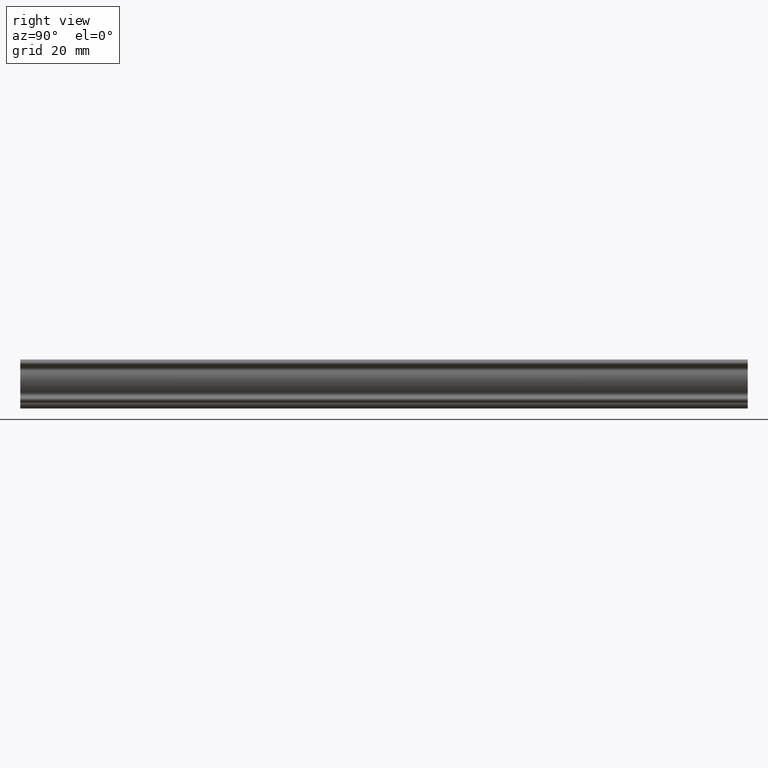
[diagram: clean part render]
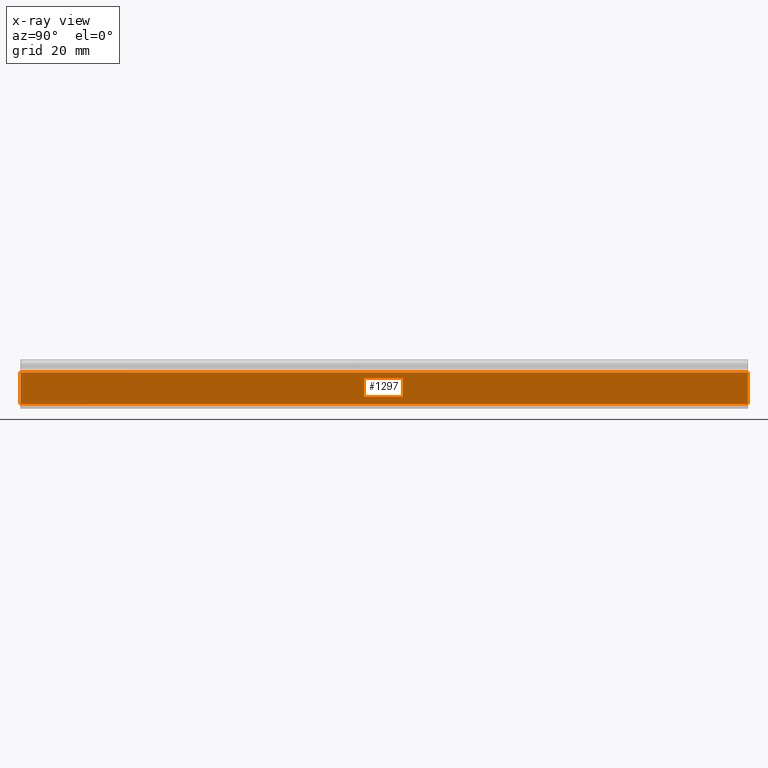
[diagram: x-ray — body ghosted, one internal face saturated and labeled with its STEP entity id]
A machine part, right view, then the same camera in x-ray: the body is ghosted and one INTERNAL B-rep face — a face not visible from any outside direction — is saturated and labeled: STEP entity #1297.
In plain terms, the highlighted face is a freeform B-spline surface patch.
Its self-contained STEP definition (entity closure, byte-faithful):
#49=CARTESIAN_POINT('',(-3.996700841700080,0.0,-12.307414607799160));
#50=VERTEX_POINT('',#49);
#70=CARTESIAN_POINT('',(-4.496700841699600,0.0,-3.613194973418355));
#71=VERTEX_POINT('',#70);
#72=CARTESIAN_POINT('',(-4.496700841699600,0.0,-3.613194973418355));
#73=CARTESIAN_POINT('',(-3.996700841700080,0.0,-12.307414607799160));
#74=QUASI_UNIFORM_CURVE('',1,(#72,#73),.UNSPECIFIED.,.F.,.U.);
#75=EDGE_CURVE('',#71,#50,#74,.T.);
#666=CARTESIAN_POINT('',(-3.996700841700080,200.0,-12.307414607799160));
#667=VERTEX_POINT('',#666);
#1255=CARTESIAN_POINT('',(-4.496700841699600,200.0,-3.613194973418355));
#1256=VERTEX_POINT('',#1255);
#1270=CARTESIAN_POINT('',(-4.496700841699600,200.0,-3.613194973418355));
#1271=CARTESIAN_POINT('',(-3.996700841700080,200.0,-12.307414607799160));
#1272=QUASI_UNIFORM_CURVE('',1,(#1270,#1271),.UNSPECIFIED.,.F.,.U.);
#1273=EDGE_CURVE('',#1256,#667,#1272,.T.);
#1278=CARTESIAN_POINT('',(-3.971725814507333,-9.989999612361194,-12.741691351376080));
#1279=CARTESIAN_POINT('',(-4.521675855481581,-9.989999612361194,-3.178918463038598));
#1280=CARTESIAN_POINT('',(-3.971725814507333,209.990004976779200,-12.741691351376080));
#1281=CARTESIAN_POINT('',(-4.521675855481581,209.990004976779200,-3.178918463038598));
#1282=B_SPLINE_SURFACE_WITH_KNOTS('',1,1,((#1278,#1280),(#1279,#1281)),.UNSPECIFIED.,.F.,.F.,.U.,(2,2),(2,2),(0.0,9.578573503475864),(0.0,219.980004589140410),.UNSPECIFIED.);
#1283=ORIENTED_EDGE('',*,*,#75,.T.);
#1284=CARTESIAN_POINT('',(-3.996700841700080,200.0,-12.307414607799160));
#1285=CARTESIAN_POINT('',(-3.996700841700080,0.0,-12.307414607799160));
#1286=QUASI_UNIFORM_CURVE('',1,(#1284,#1285),.UNSPECIFIED.,.F.,.U.);
#1287=EDGE_CURVE('',#667,#50,#1286,.T.);
#1288=ORIENTED_EDGE('',*,*,#1287,.F.);
#1289=ORIENTED_EDGE('',*,*,#1273,.F.);
#1290=CARTESIAN_POINT('',(-4.496700841699600,200.0,-3.613194973418355));
#1291=CARTESIAN_POINT('',(-4.496700841699600,0.0,-3.613194973418355));
#1292=QUASI_UNIFORM_CURVE('',1,(#1290,#1291),.UNSPECIFIED.,.F.,.U.);
#1293=EDGE_CURVE('',#1256,#71,#1292,.T.);
#1294=ORIENTED_EDGE('',*,*,#1293,.T.);
#1295=EDGE_LOOP('',(#1283,#1288,#1289,#1294));
#1296=FACE_OUTER_BOUND('',#1295,.T.);
#1297=ADVANCED_FACE('',(#1296),#1282,.F.);